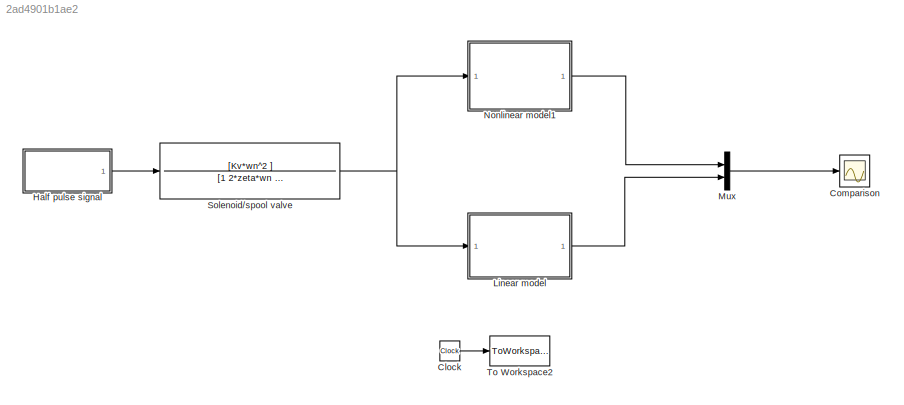
MODEL slx_2ad4901b1ae2
KIND model
CONFIG AbsTol = auto
CONFIG EnableMultiTasking = off
CONFIG FixedStep = 0.001
CONFIG MaxStep = auto
CONFIG MinStep = auto
CONFIG RelTol = 1e-3
CONFIG SampleTimeConstraint = Unconstrained
CONFIG Solver = VariableStepAuto
CONFIG SolverName = VariableStepAuto
CONFIG StartTime = 0.0
CONFIG StopTime = 2
BLOCK [Clock] Clock
BLOCK [Scope] Comparison
  Floating = off
  NumInputPorts = 1
  Ports = [1]
  ScopeSpecificationString = Simulink.scopes.TimeScopeBlockCfg('CurrentConfiguration', extmgr.ConfigurationSet(extmgr.Configuration('Core','General UI',true),extmgr.Configuration('Core','Source UI',true),extmgr.Configuration('Sources','WiredSimulink',true),extmgr.Configuration('Visuals','Time Domain',true,'SerializedDisplays',{struct('MinYLimReal','0.28627','MaxYLimReal','0.42359','YLabelReal','','MinYLimMag','0.28627','MaxYL...<+1403ch>
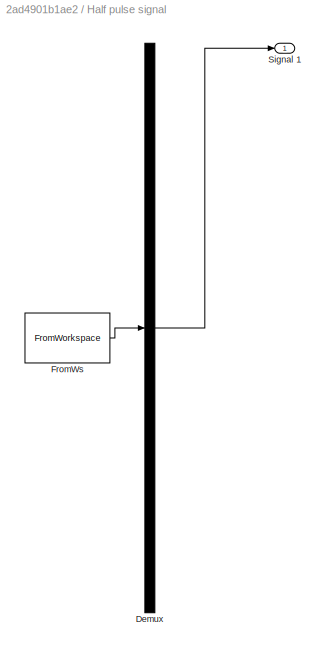
BLOCK [SubSystem] Half pulse signal
  ClipboardFcn = sigbuilder_block('clipboard');
  CloseFcn = sigbuilder_block('close');
  ContinueFcn = sigbuilder_block('continue');
  CopyFcn = sigbuilder_block('copy');
  DeleteFcn = sigbuilder_block('delete');
  LoadFcn = sigbuilder_block('load');
  MaskHideContents = on
  ModelCloseFcn = sigbuilder_block('modelClose');
  NameChangeFcn = sigbuilder_block('namechange');
  OpenFcn = sigbuilder_block('open',[437.6 199.2 550.4 400 ]);
  PauseFcn = sigbuilder_block('pause');
  Ports = [0, 1]
  PreSaveFcn = sigbuilder_block('preSave');
  RequestExecContextInheritance = off
  StartFcn = sigbuilder_block('start');
  StopFcn = sigbuilder_block('stop');
  Tag = STV Subsys
BLOCK [Demux] Half pulse signal/Demux
  Outputs = 1
  Ports = [1, 1]
  Tag = STV Demux
BLOCK [FromWorkspace] Half pulse signal/FromWs
  SampleTime = 0
  Tag = STV FromWs
  VariableName = tuvar
  ZeroCross = on
BLOCK [Outport] Half pulse signal/Signal 1
  IconDisplay = Port number
  Tag = STV Outport
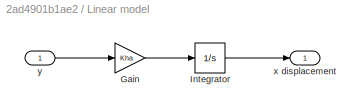
BLOCK [SubSystem] Linear model
  Ports = [1, 1]
  RequestExecContextInheritance = off
BLOCK [Gain] Linear model/Gain
  Gain = Kha
  OutDataTypeStr = Inherit: Inherit via internal rule
  ParamDataTypeStr = Inherit: Inherit via internal rule
  SaturateOnIntegerOverflow = off
BLOCK [Integrator] Linear model/Integrator
  InitialCondition = 0.3
  Ports = [1, 1]
BLOCK [Outport] Linear model/x displacement
  IconDisplay = Port number
BLOCK [Inport] Linear model/y
  IconDisplay = Port number
BLOCK [Mux] Mux
  DisplayOption = bar
  Inputs = 2
  Ports = [2, 1]
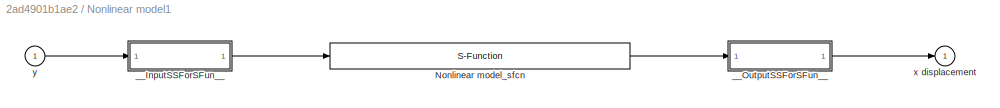
BLOCK [SubSystem] Nonlinear model1
  Ports = [1, 1]
  RequestExecContextInheritance = off
BLOCK [S-Function] Nonlinear model1/Nonlinear model_sfcn
  CopyFcn = if ~strcmp(get_param(gcb,'Linkstatus'),'none') && ...\n~strcmp(get_param(gcb,'Linkstatus'),'implicit')      \n  set_param(gcb,'LinkStatus','none');                \nend
  EnableBusSupport = off
  FunctionName = Nonlinear_sf
  Ports = [1, 1]
  SFcnIsStateOwnerBlock = off
  SFunctionDeploymentMode = off
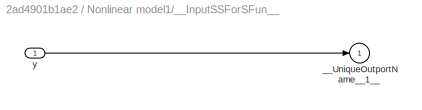
BLOCK [SubSystem] Nonlinear model1/__InputSSForSFun__
  PermitHierarchicalResolution = ExplicitOnly
  Ports = [1, 1]
  RequestExecContextInheritance = off
BLOCK [Outport] Nonlinear model1/__InputSSForSFun__/__UniqueOutportName__1__
  IconDisplay = Port number
BLOCK [Inport] Nonlinear model1/__InputSSForSFun__/y
  IconDisplay = Port number
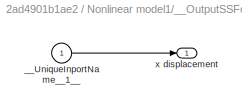
BLOCK [SubSystem] Nonlinear model1/__OutputSSForSFun__
  PermitHierarchicalResolution = ExplicitOnly
  Ports = [1, 1]
  RequestExecContextInheritance = off
BLOCK [Inport] Nonlinear model1/__OutputSSForSFun__/__UniqueInportName__1__
  IconDisplay = Port number
BLOCK [Outport] Nonlinear model1/__OutputSSForSFun__/x displacement
  IconDisplay = Port number
BLOCK [Outport] Nonlinear model1/x displacement
  IconDisplay = Port number
BLOCK [Inport] Nonlinear model1/y
  IconDisplay = Port number
BLOCK [TransferFcn] Solenoid//spool valve
  Denominator = [1 2*zeta*wn wn^2]
  Numerator = [Kv*wn^2 ]
BLOCK [ToWorkspace] To Workspace2
  FixptAsFi = on
  MaxDataPoints = inf
  Ports = [1]
  SampleTime = -1
  SaveFormat = Timeseries
  VariableName = time
LINE Clock:1 -> To Workspace2:1
LINE Half pulse signal:1 -> Solenoid//spool valve:1
LINE Linear model/Gain:1 -> Linear model/Integrator:1
LINE Linear model/Integrator:1 -> Linear model/x displacement:1
LINE Linear model/y:1 -> Linear model/Gain:1
LINE Linear model:1 -> Mux:2
LINE Mux:1 -> Comparison:1
LINE Nonlinear model1/Nonlinear model_sfcn:1 -> Nonlinear model1/__OutputSSForSFun__:1
LINE Nonlinear model1/__InputSSForSFun__/y:1 -> Nonlinear model1/__InputSSForSFun__/__UniqueOutportName__1__:1
LINE Nonlinear model1/__InputSSForSFun__:1 -> Nonlinear model1/Nonlinear model_sfcn:1
LINE Nonlinear model1/__OutputSSForSFun__/__UniqueInportName__1__:1 -> Nonlinear model1/__OutputSSForSFun__/x displacement:1
LINE Nonlinear model1/__OutputSSForSFun__:1 -> Nonlinear model1/x displacement:1
LINE Nonlinear model1/y:1 -> Nonlinear model1/__InputSSForSFun__:1
LINE Nonlinear model1:1 -> Mux:1
NET Solenoid//spool valve:1 -> Linear model:1, Nonlinear model1:1
note: NET lines group one-source signal fan-out (src -> all destinations, sorted); 1:1 wires keep LINE
